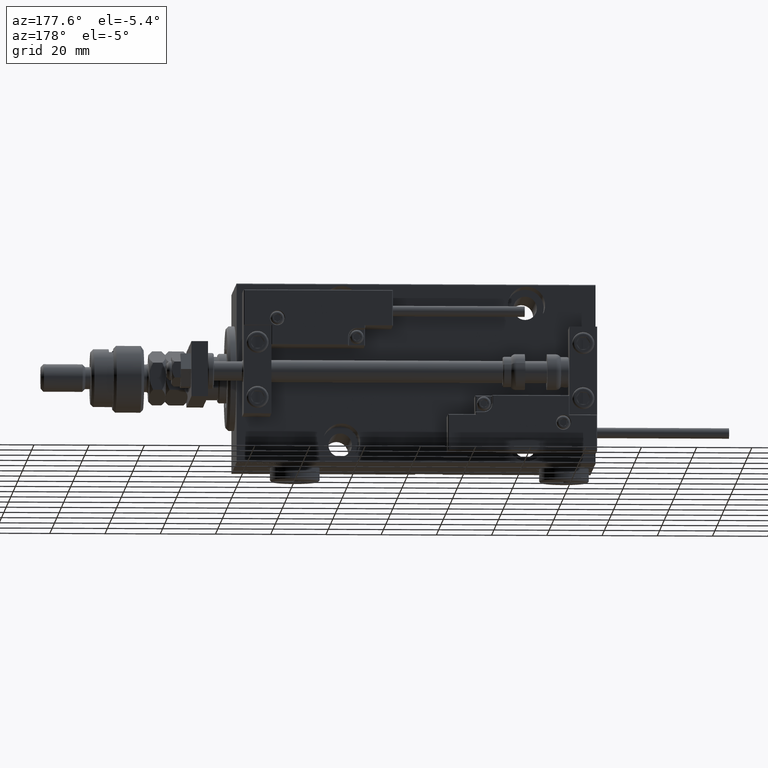
[diagram: clean part render]
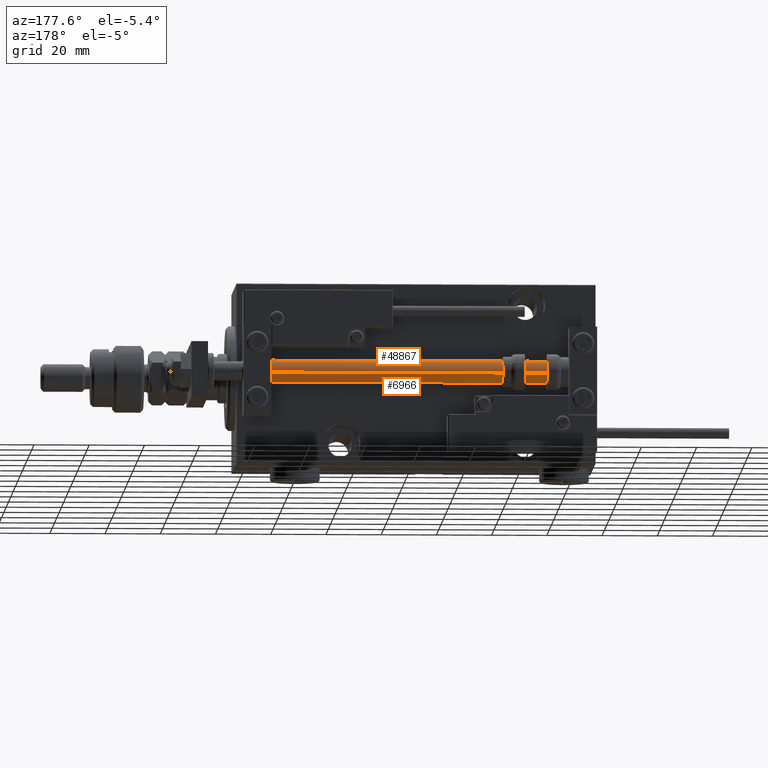
[diagram: same view with one multi-face feature highlighted, each face labeled with its STEP entity id]
A machine part, auxiliary view. The highlighted faces form ONE feature: a constant-radius fillet chain: 2 tangent blend faces with common blend radius 4 mm. The faces share edges in the B-rep.
Their STEP definitions:
[1] entity #6966 (Cylinder):
#643 = CARTESIAN_POINT ( 'NONE',  ( 0.000000000000000000, 0.000000000000000000, 130.0000000000000000 ) ) ;
#1748 = DIRECTION ( 'NONE',  ( -0.000000000000000000, -0.000000000000000000, -1.000000000000000000 ) ) ;
#2270 = VERTEX_POINT ( 'NONE', #51985 ) ;
#6643 = VERTEX_POINT ( 'NONE', #53442 ) ;
#6665 = CARTESIAN_POINT ( 'NONE',  ( -4.000000000000000000, 0.000000000000000000, 130.0000000000000000 ) ) ;
#6966 = ADVANCED_FACE ( 'NONE', ( #53376 ), #8599, .T. ) ;
#8192 = EDGE_CURVE ( 'NONE', #6643, #11858, #31742, .T. ) ;
#8599 = CYLINDRICAL_SURFACE ( 'NONE', #47437, 4.000000000000000000 ) ;
#9160 = CARTESIAN_POINT ( 'NONE',  ( -4.000000000000000000, 0.000000000000000000, 130.0000000000000000 ) ) ;
#9169 = VECTOR ( 'NONE', #1748, 1000.000000000000000 ) ;
#11858 = VERTEX_POINT ( 'NONE', #9160 ) ;
#12600 = AXIS2_PLACEMENT_3D ( 'NONE', #35678, #26899, #14298 ) ;
#14298 = DIRECTION ( 'NONE',  ( 1.000000000000000000, 0.000000000000000000, 0.000000000000000000 ) ) ;
#15174 = DIRECTION ( 'NONE',  ( -0.000000000000000000, -0.000000000000000000, -1.000000000000000000 ) ) ;
#26072 = ORIENTED_EDGE ( 'NONE', *, *, #53411, .F. ) ;
#26899 = DIRECTION ( 'NONE',  ( -0.000000000000000000, -0.000000000000000000, 1.000000000000000000 ) ) ;
#27986 = DIRECTION ( 'NONE',  ( 0.000000000000000000, 0.000000000000000000, 1.000000000000000000 ) ) ;
#29178 = DIRECTION ( 'NONE',  ( -1.000000000000000000, 0.000000000000000000, 0.000000000000000000 ) ) ;
#30907 = VERTEX_POINT ( 'NONE', #38461 ) ;
#31099 = CARTESIAN_POINT ( 'NONE',  ( 4.000000000000000000, 4.898587196589412829E-16, 130.0000000000000000 ) ) ;
#31742 = CIRCLE ( 'NONE', #32614, 4.000000000000000000 ) ;
#32614 = AXIS2_PLACEMENT_3D ( 'NONE', #43900, #27986, #40601 ) ;
#34322 = ORIENTED_EDGE ( 'NONE', *, *, #47515, .T. ) ;
#35678 = CARTESIAN_POINT ( 'NONE',  ( 0.000000000000000000, 0.000000000000000000, 2.000000000000029310 ) ) ;
#37678 = DIRECTION ( 'NONE',  ( -0.000000000000000000, -0.000000000000000000, -1.000000000000000000 ) ) ;
#38034 = EDGE_LOOP ( 'NONE', ( #40303, #45109, #34322, #26072 ) ) ;
#38461 = CARTESIAN_POINT ( 'NONE',  ( 4.000000000000000000, 4.898587196589412829E-16, 2.000000000000029310 ) ) ;
#39326 = LINE ( 'NONE', #31099, #9169 ) ;
#40303 = ORIENTED_EDGE ( 'NONE', *, *, #8192, .F. ) ;
#40601 = DIRECTION ( 'NONE',  ( 1.000000000000000000, 0.000000000000000000, 0.000000000000000000 ) ) ;
#43900 = CARTESIAN_POINT ( 'NONE',  ( 0.000000000000000000, 0.000000000000000000, 130.0000000000000000 ) ) ;
#45109 = ORIENTED_EDGE ( 'NONE', *, *, #49673, .T. ) ;
#45794 = VECTOR ( 'NONE', #15174, 1000.000000000000000 ) ;
#45857 = CIRCLE ( 'NONE', #12600, 4.000000000000000000 ) ;
#47437 = AXIS2_PLACEMENT_3D ( 'NONE', #643, #37678, #29178 ) ;
#47515 = EDGE_CURVE ( 'NONE', #30907, #2270, #45857, .T. ) ;
#49673 = EDGE_CURVE ( 'NONE', #6643, #30907, #39326, .T. ) ;
#51985 = CARTESIAN_POINT ( 'NONE',  ( -4.000000000000000000, 0.000000000000000000, 2.000000000000029310 ) ) ;
#52476 = LINE ( 'NONE', #6665, #45794 ) ;
#53376 = FACE_OUTER_BOUND ( 'NONE', #38034, .T. ) ;
#53411 = EDGE_CURVE ( 'NONE', #11858, #2270, #52476, .T. ) ;
#53442 = CARTESIAN_POINT ( 'NONE',  ( 4.000000000000000000, 4.898587196589412829E-16, 130.0000000000000000 ) ) ;
[2] entity #48867 (Cylinder):
#1748 = DIRECTION ( 'NONE',  ( -0.000000000000000000, -0.000000000000000000, -1.000000000000000000 ) ) ;
#1963 = DIRECTION ( 'NONE',  ( 0.000000000000000000, 0.000000000000000000, 1.000000000000000000 ) ) ;
#2270 = VERTEX_POINT ( 'NONE', #51985 ) ;
#4104 = ORIENTED_EDGE ( 'NONE', *, *, #53411, .T. ) ;
#4936 = CIRCLE ( 'NONE', #12855, 4.000000000000000000 ) ;
#6643 = VERTEX_POINT ( 'NONE', #53442 ) ;
#6665 = CARTESIAN_POINT ( 'NONE',  ( -4.000000000000000000, 0.000000000000000000, 130.0000000000000000 ) ) ;
#9160 = CARTESIAN_POINT ( 'NONE',  ( -4.000000000000000000, 0.000000000000000000, 130.0000000000000000 ) ) ;
#9169 = VECTOR ( 'NONE', #1748, 1000.000000000000000 ) ;
#11858 = VERTEX_POINT ( 'NONE', #9160 ) ;
#12855 = AXIS2_PLACEMENT_3D ( 'NONE', #30390, #25716, #47100 ) ;
#14008 = ORIENTED_EDGE ( 'NONE', *, *, #24572, .T. ) ;
#15174 = DIRECTION ( 'NONE',  ( -0.000000000000000000, -0.000000000000000000, -1.000000000000000000 ) ) ;
#16078 = CYLINDRICAL_SURFACE ( 'NONE', #37181, 4.000000000000000000 ) ;
#18533 = ORIENTED_EDGE ( 'NONE', *, *, #49673, .F. ) ;
#24572 = EDGE_CURVE ( 'NONE', #2270, #30907, #4936, .T. ) ;
#25716 = DIRECTION ( 'NONE',  ( -0.000000000000000000, -0.000000000000000000, 1.000000000000000000 ) ) ;
#28143 = FACE_OUTER_BOUND ( 'NONE', #45776, .T. ) ;
#30390 = CARTESIAN_POINT ( 'NONE',  ( 0.000000000000000000, 0.000000000000000000, 2.000000000000029310 ) ) ;
#30907 = VERTEX_POINT ( 'NONE', #38461 ) ;
#31099 = CARTESIAN_POINT ( 'NONE',  ( 4.000000000000000000, 4.898587196589412829E-16, 130.0000000000000000 ) ) ;
#31878 = ORIENTED_EDGE ( 'NONE', *, *, #42531, .F. ) ;
#32812 = CARTESIAN_POINT ( 'NONE',  ( 0.000000000000000000, 0.000000000000000000, 130.0000000000000000 ) ) ;
#34293 = AXIS2_PLACEMENT_3D ( 'NONE', #43381, #1963, #52422 ) ;
#35183 = CIRCLE ( 'NONE', #34293, 4.000000000000000000 ) ;
#36380 = DIRECTION ( 'NONE',  ( -0.000000000000000000, -0.000000000000000000, -1.000000000000000000 ) ) ;
#37181 = AXIS2_PLACEMENT_3D ( 'NONE', #32812, #36380, #41033 ) ;
#38461 = CARTESIAN_POINT ( 'NONE',  ( 4.000000000000000000, 4.898587196589412829E-16, 2.000000000000029310 ) ) ;
#39326 = LINE ( 'NONE', #31099, #9169 ) ;
#41033 = DIRECTION ( 'NONE',  ( -1.000000000000000000, 0.000000000000000000, 0.000000000000000000 ) ) ;
#42531 = EDGE_CURVE ( 'NONE', #11858, #6643, #35183, .T. ) ;
#43381 = CARTESIAN_POINT ( 'NONE',  ( 0.000000000000000000, 0.000000000000000000, 130.0000000000000000 ) ) ;
#45776 = EDGE_LOOP ( 'NONE', ( #18533, #31878, #4104, #14008 ) ) ;
#45794 = VECTOR ( 'NONE', #15174, 1000.000000000000000 ) ;
#47100 = DIRECTION ( 'NONE',  ( 1.000000000000000000, 0.000000000000000000, 0.000000000000000000 ) ) ;
#48867 = ADVANCED_FACE ( 'NONE', ( #28143 ), #16078, .T. ) ;
#49673 = EDGE_CURVE ( 'NONE', #6643, #30907, #39326, .T. ) ;
#51985 = CARTESIAN_POINT ( 'NONE',  ( -4.000000000000000000, 0.000000000000000000, 2.000000000000029310 ) ) ;
#52422 = DIRECTION ( 'NONE',  ( 1.000000000000000000, 0.000000000000000000, 0.000000000000000000 ) ) ;
#52476 = LINE ( 'NONE', #6665, #45794 ) ;
#53411 = EDGE_CURVE ( 'NONE', #11858, #2270, #52476, .T. ) ;
#53442 = CARTESIAN_POINT ( 'NONE',  ( 4.000000000000000000, 4.898587196589412829E-16, 130.0000000000000000 ) ) ;